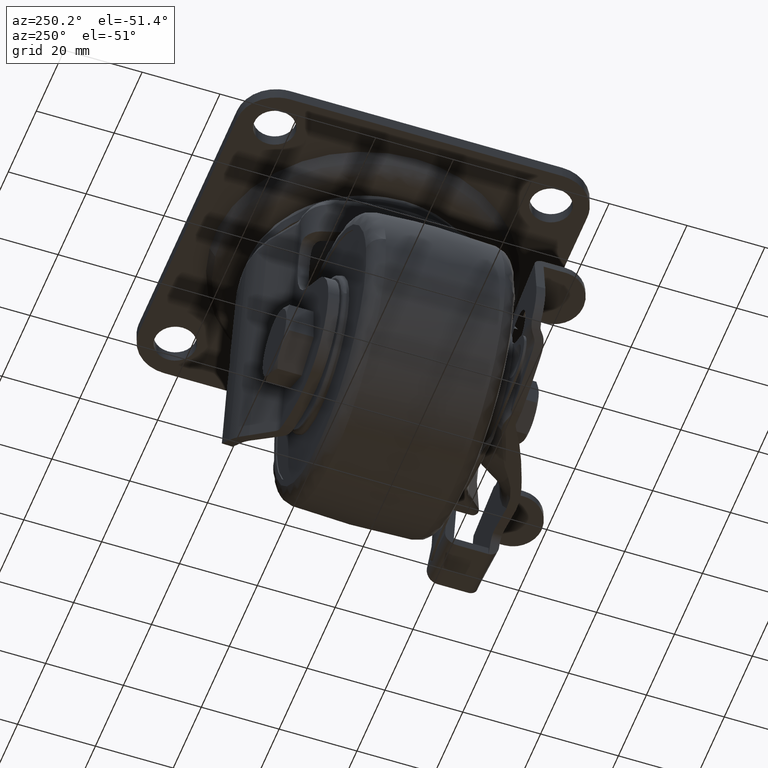
[diagram: clean part render]
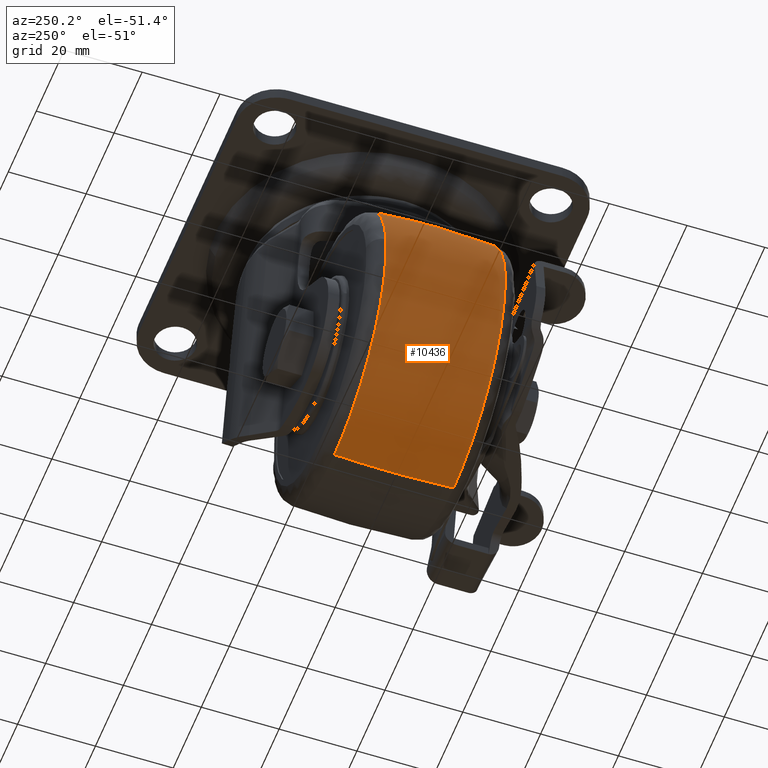
[diagram: same view with one face highlighted and labeled with its STEP entity id]
A machine part, auxiliary view. The second image highlights one B-rep face of the part: STEP entity #10436.
In plain terms, the highlighted face is a freeform B-spline surface patch.
Its self-contained STEP definition (entity closure, byte-faithful):
#10087=CARTESIAN_POINT('',(-58.840605710530923,-15.306134477934719,-70.817814449732765));
#10088=VERTEX_POINT('',#10087);
#10102=CARTESIAN_POINT('',(-22.0,-15.306134513033440,-105.413445500219000));
#10103=VERTEX_POINT('',#10102);
#10104=CARTESIAN_POINT('',(-58.840605710530923,-15.306134477934727,-70.817814449732765));
#10105=CARTESIAN_POINT('',(-56.664033215925286,-15.306134495527326,-105.413445485824700));
#10106=CARTESIAN_POINT('',(-22.0,-15.306134513033440,-105.413445500219000));
#10114=(BOUNDED_CURVE()B_SPLINE_CURVE(2,(#10104,#10105,#10106),.UNSPECIFIED.,.F.,.U.)B_SPLINE_CURVE_WITH_KNOTS((3,3),(0.760968089530880,1.0),.UNSPECIFIED.)CURVE()GEOMETRIC_REPRESENTATION_ITEM()RATIONAL_B_SPLINE_CURVE((0.975427679874222,0.719956697374282,1.0))REPRESENTATION_ITEM(''));
#10115=EDGE_CURVE('',#10088,#10103,#10114,.T.);
#10177=CARTESIAN_POINT('',(-22.0,-15.306134512848869,-31.586554499766869));
#10178=VERTEX_POINT('',#10177);
#10192=CARTESIAN_POINT('',(-22.0,-15.306134512848869,-31.586554499766869));
#10193=CARTESIAN_POINT('',(-58.913446211356508,-15.306134496409529,-31.586554486249746));
#10194=CARTESIAN_POINT('',(-58.913445982566209,-15.306134478995711,-68.499999972081525));
#10195=CARTESIAN_POINT('',(-58.913445975376185,-15.306134478448458,-69.660051759558087));
#10196=CARTESIAN_POINT('',(-58.840605710530923,-15.306134477934727,-70.817814449732765));
#10204=(BOUNDED_CURVE()B_SPLINE_CURVE(2,(#10192,#10193,#10194,#10195,#10196),.UNSPECIFIED.,.F.,.U.)B_SPLINE_CURVE_WITH_KNOTS((3,2,3),(0.500000000000000,0.750000000000000,0.760968089530880),.UNSPECIFIED.)CURVE()GEOMETRIC_REPRESENTATION_ITEM()RATIONAL_B_SPLINE_CURVE((1.0,0.707106781186548,1.0,0.987150083812265,0.975427679874222))REPRESENTATION_ITEM(''));
#10205=EDGE_CURVE('',#10178,#10088,#10204,.T.);
#10312=CARTESIAN_POINT('',(-22.0,15.306135642015949,-105.413445413563000));
#10313=VERTEX_POINT('',#10312);
#10314=CARTESIAN_POINT('',(-21.999999999999996,-15.306134513033465,-105.413445500219240));
#10315=CARTESIAN_POINT('',(-22.000000000000004,0.000000567816920,-106.588279834155370));
#10316=CARTESIAN_POINT('',(-21.999999999999996,15.306135642015967,-105.413445413563320));
#10324=(BOUNDED_CURVE()B_SPLINE_CURVE(2,(#10314,#10315,#10316),.UNSPECIFIED.,.F.,.U.)B_SPLINE_CURVE_WITH_KNOTS((3,3),(0.440426759936341,0.559573244470715),.UNSPECIFIED.)CURVE()GEOMETRIC_REPRESENTATION_ITEM()RATIONAL_B_SPLINE_CURVE((0.907580864099381,0.904919135802166,0.907580864296288))REPRESENTATION_ITEM(''));
#10325=EDGE_CURVE('',#10103,#10313,#10324,.T.);
#10342=CARTESIAN_POINT('',(-22.0,15.306135641808650,-31.586554586421130));
#10343=VERTEX_POINT('',#10342);
#10359=CARTESIAN_POINT('',(-22.000000000000007,-15.306134512848868,-31.586554499766869));
#10360=CARTESIAN_POINT('',(-22.000000000000004,0.000000567805497,-30.411720165859741));
#10361=CARTESIAN_POINT('',(-22.000000000000004,15.306135641808673,-31.586554586420753));
#10369=(BOUNDED_CURVE()B_SPLINE_CURVE(2,(#10359,#10360,#10361),.UNSPECIFIED.,.F.,.U.)B_SPLINE_CURVE_WITH_KNOTS((3,3),(0.440426759937061,0.559573244469906),.UNSPECIFIED.)CURVE()GEOMETRIC_REPRESENTATION_ITEM()RATIONAL_B_SPLINE_CURVE((0.907580864099349,0.904919135802200,0.907580864296252))REPRESENTATION_ITEM(''));
#10370=EDGE_CURVE('',#10178,#10343,#10369,.T.);
#10377=CARTESIAN_POINT('',(-22.0,-16.830038166259541,-31.709383524155257));
#10378=CARTESIAN_POINT('',(-22.000000000000004,-7.854426E-015,-30.288091394668147));
#10379=CARTESIAN_POINT('',(-22.0,16.830038166259541,-31.709383524155257));
#10380=CARTESIAN_POINT('',(-58.790616475844743,-16.830038166259552,-31.709383524155239));
#10381=CARTESIAN_POINT('',(-60.211908605331864,-1.110784E-014,-30.288091394668132));
#10382=CARTESIAN_POINT('',(-58.790616475844743,16.830038166259541,-31.709383524155239));
#10383=CARTESIAN_POINT('',(-58.790616475844757,-16.830038166259541,-68.500000000000000));
#10384=CARTESIAN_POINT('',(-60.211908605331878,-7.854426E-015,-68.500000000000000));
#10385=CARTESIAN_POINT('',(-58.790616475844757,16.830038166259541,-68.500000000000000));
#10386=CARTESIAN_POINT('',(-58.790616475844757,-16.830038166259552,-105.290616475844740));
#10387=CARTESIAN_POINT('',(-60.211908605331864,-1.110784E-014,-106.711908605331860));
#10388=CARTESIAN_POINT('',(-58.790616475844743,16.830038166259541,-105.290616475844740));
#10389=CARTESIAN_POINT('',(-22.0,-16.830038166259541,-105.290616475844740));
#10390=CARTESIAN_POINT('',(-22.000000000000004,-7.854426E-015,-106.711908605331870));
#10391=CARTESIAN_POINT('',(-22.0,16.830038166259541,-105.290616475844760));
#10399=(BOUNDED_SURFACE()B_SPLINE_SURFACE(2,2,((#10377,#10380,#10383,#10386,#10389),(#10378,#10381,#10384,#10387,#10390),(#10379,#10382,#10385,#10388,#10391)),.UNSPECIFIED.,.F.,.F.,.U.)B_SPLINE_SURFACE_WITH_KNOTS((3,3),(3,2,3),(0.0,33.719877145728383),(0.0,62.132034355964258,124.264068711928500),.UNSPECIFIED.)GEOMETRIC_REPRESENTATION_ITEM()RATIONAL_B_SPLINE_SURFACE(((0.907860052408543,0.641953999426455,0.907860052408543,0.641953999426455,0.907860052408543),(0.904639947591457,0.639677041474162,0.904639947591457,0.639677041474162,0.904639947591457),(0.907860052408543,0.641953999426455,0.907860052408543,0.641953999426455,0.907860052408543)))REPRESENTATION_ITEM('')SURFACE());
#10400=ORIENTED_EDGE('',*,*,#10325,.F.);
#10401=ORIENTED_EDGE('',*,*,#10115,.F.);
#10402=ORIENTED_EDGE('',*,*,#10205,.F.);
#10403=ORIENTED_EDGE('',*,*,#10370,.T.);
#10404=CARTESIAN_POINT('',(-58.770724109080007,15.306135604005590,-65.257109607162576));
#10405=VERTEX_POINT('',#10404);
#10406=CARTESIAN_POINT('',(-22.0,15.306135641808650,-31.586554586421130));
#10407=CARTESIAN_POINT('',(-55.801244482452560,15.306135622859834,-31.586554608362441));
#10408=CARTESIAN_POINT('',(-58.770724109080007,15.306135604005599,-65.257109607162576));
#10416=(BOUNDED_CURVE()B_SPLINE_CURVE(2,(#10406,#10407,#10408),.UNSPECIFIED.,.F.,.U.)B_SPLINE_CURVE_WITH_KNOTS((3,3),(0.500000000000000,0.734718454445718),.UNSPECIFIED.)CURVE()GEOMETRIC_REPRESENTATION_ITEM()RATIONAL_B_SPLINE_CURVE((1.0,0.725010225449900,0.966381849866008))REPRESENTATION_ITEM(''));
#10417=EDGE_CURVE('',#10343,#10405,#10416,.T.);
#10418=ORIENTED_EDGE('',*,*,#10417,.T.);
#10419=CARTESIAN_POINT('',(-58.770724109080007,15.306135604005599,-65.257109607162576));
#10420=CARTESIAN_POINT('',(-58.913445938651613,15.306135604773777,-66.875414182504414));
#10421=CARTESIAN_POINT('',(-58.913445949601019,15.306135605612290,-68.500000042024780));
#10422=CARTESIAN_POINT('',(-58.913446198390794,15.306135624664737,-105.413445433654360));
#10423=CARTESIAN_POINT('',(-22.0,15.306135642015949,-105.413445413563000));
#10431=(BOUNDED_CURVE()B_SPLINE_CURVE(2,(#10419,#10420,#10421,#10422,#10423),.UNSPECIFIED.,.F.,.U.)B_SPLINE_CURVE_WITH_KNOTS((3,2,3),(0.734718454445718,0.750000000000000,1.0),.UNSPECIFIED.)CURVE()GEOMETRIC_REPRESENTATION_ITEM()RATIONAL_B_SPLINE_CURVE((0.966381849866008,0.982096555736648,1.0,0.707106781186548,1.0))REPRESENTATION_ITEM(''));
#10432=EDGE_CURVE('',#10405,#10313,#10431,.T.);
#10433=ORIENTED_EDGE('',*,*,#10432,.T.);
#10434=EDGE_LOOP('',(#10400,#10401,#10402,#10403,#10418,#10433));
#10435=FACE_OUTER_BOUND('',#10434,.T.);
#10436=ADVANCED_FACE('',(#10435),#10399,.T.);